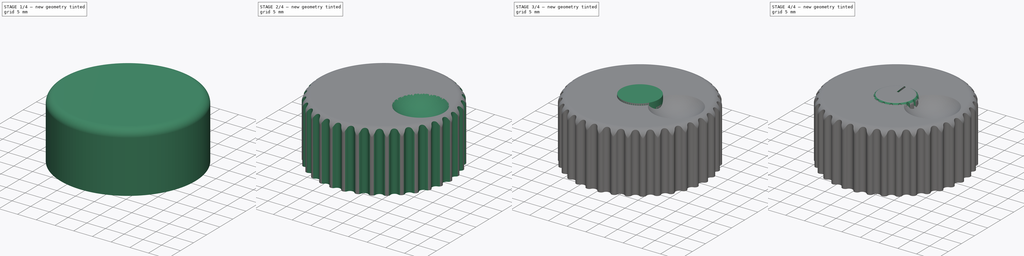
[diagram: build sequence overview — one tinted view per stage of 4, left to right]
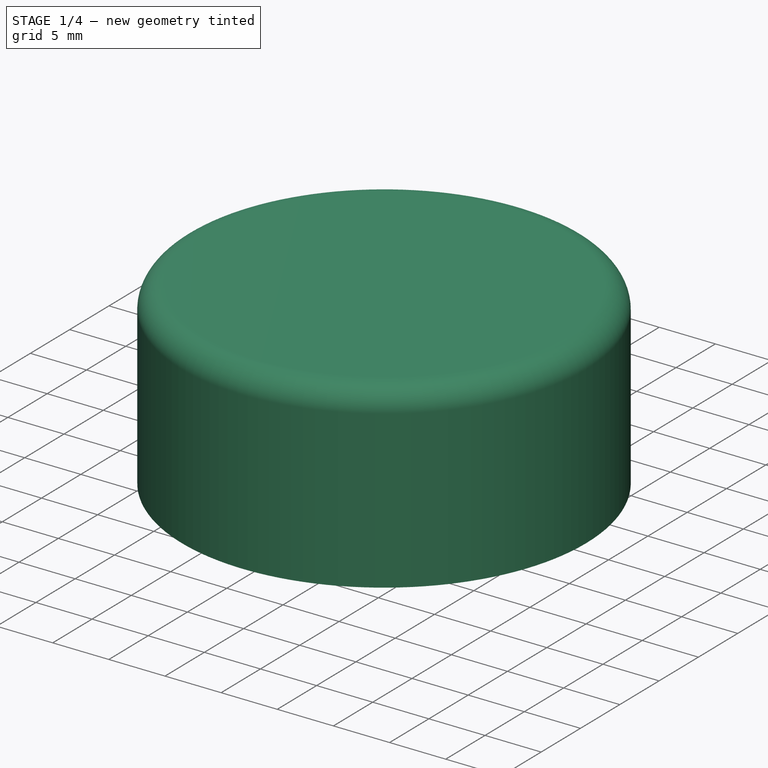
[diagram: stage 1 of 4 — iso view after this stage's code; geometry added in this stage tinted green]
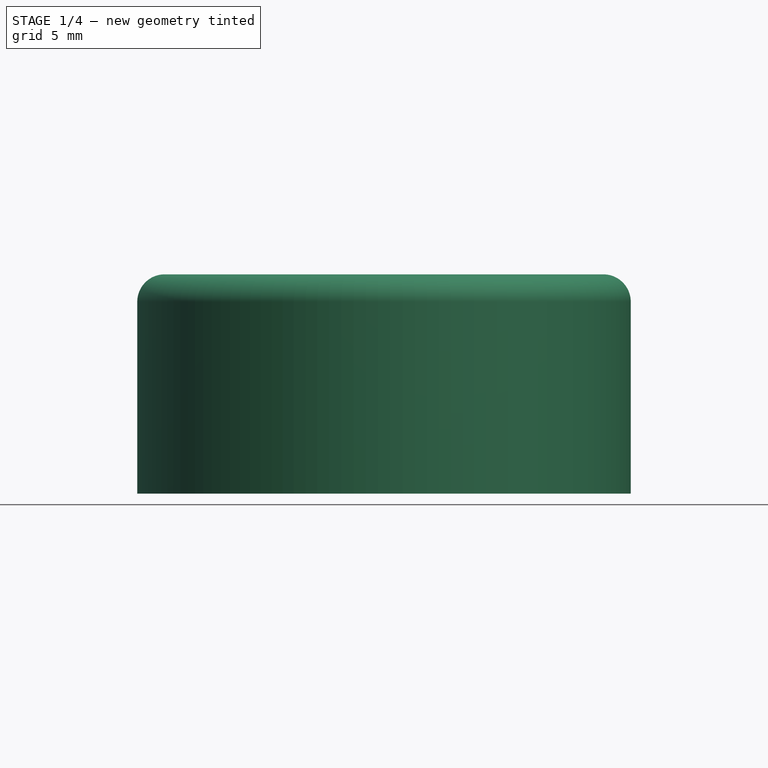
[diagram: stage 1 of 4 — front view after this stage's code; geometry added in this stage tinted green]
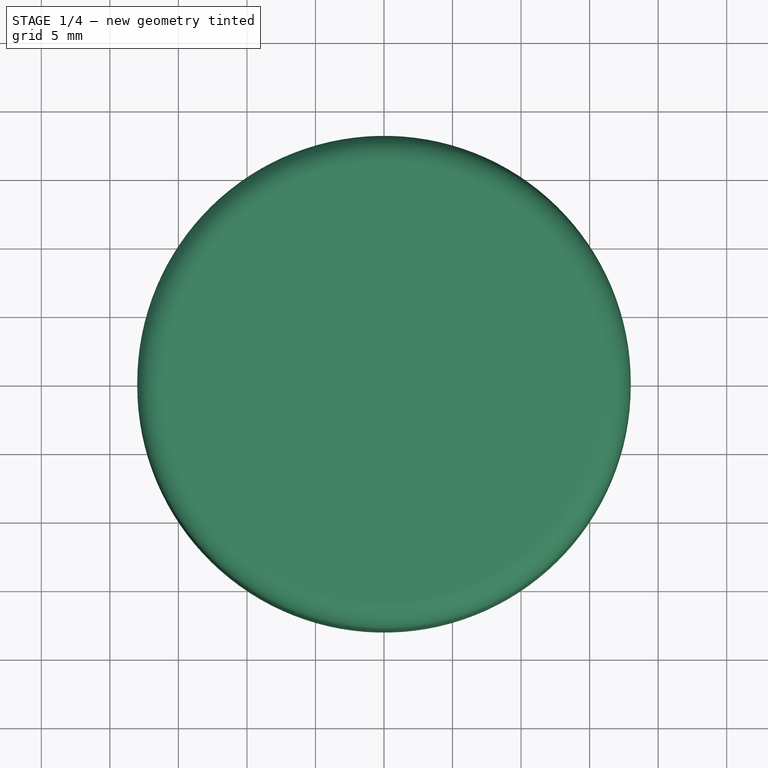
[diagram: stage 1 of 4 — top view after this stage's code; geometry added in this stage tinted green]
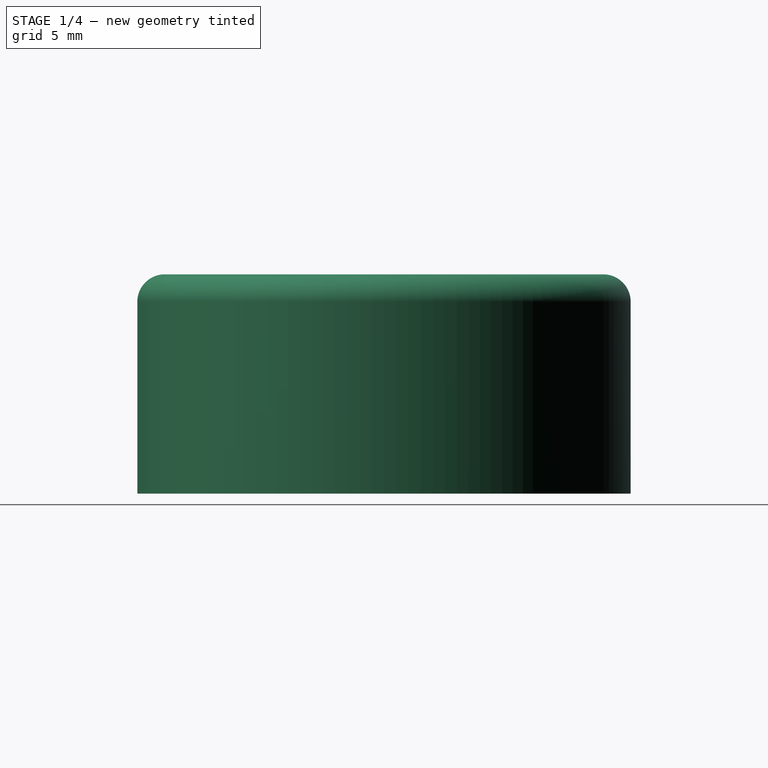
[diagram: stage 1 of 4 — right view after this stage's code; geometry added in this stage tinted green]
FCSTD DOCUMENT  (FreeCAD 0.19R24366 (Git))
Label: EncoderKnobs
License: All rights reserved
LicenseURL: http://en.wikipedia.org/wiki/All_rights_reserved
objects: Sketcher::SketchObject×27, PartDesign::SubtractiveLoft×4, PartDesign::AdditiveLoft×3, PartDesign::Fillet×2, PartDesign::PolarPattern×2, PartDesign::Body×2, Spreadsheet::Sheet×1, PartDesign::Pocket×1, PartDesign::Pad×1, PartDesign::Groove×1
note: 55 computed .brp shape members not serialized (recipe doc carries the construction recipe); baked Part::Feature solids carry a one-line shape summary decoded from their .brp

FEATURE [PartDesign::Body] Body001  label="SmallKnob"
  Group = -> [Sketch003,Sketch004,Sketch005,Sketch006,Sketch007,AdditiveLoft,Sketch008,Sketch009,Sketch010,Sketch011,SubtractiveLoft,Sketch012,Sketch013,Sketch014,AdditiveLoft001,Fillet,Sketch,Pocket,Sketch015,Sketch016,SubtractiveLoft001,PolarPattern]
  Origin = -> Origin001
  Tip = -> PolarPattern
FEATURE [Sketcher::SketchObject] Sketch017  label="LK_Template_XY"
  FullyConstrained = true
  MapMode = 5
  Support = -> [XY_Plane002]
  sketch-geometry (12):
    g0: Circle CenterX=0 CenterY=0 CenterZ=0 NormalX=0 NormalY=0 NormalZ=1 AngleXU=0 Radius=18
    g1: Circle CenterX=0 CenterY=0 CenterZ=0 NormalX=0 NormalY=0 NormalZ=1 AngleXU=0 Radius=3.1
    g2: LineSegment StartX=-0.5 StartY=3.3 StartZ=0 EndX=-0.5 EndY=-3.3 EndZ=0
    g3: LineSegment StartX=0.5 StartY=3.3 StartZ=0 EndX=0.5 EndY=-3.3 EndZ=0
    g4: Circle CenterX=0 CenterY=0 CenterZ=0 NormalX=0 NormalY=0 NormalZ=1 AngleXU=0 Radius=3.3
    g5: LineSegment StartX=0 StartY=18 StartZ=0 EndX=0 EndY=-18 EndZ=0
    g6: LineSegment StartX=-18 StartY=0 StartZ=0 EndX=18 EndY=0 EndZ=0
    g7: LineSegment StartX=-0.5 StartY=3.3 StartZ=0 EndX=0.5 EndY=3.3 EndZ=0
    g8: LineSegment StartX=-0.5 StartY=-3.3 StartZ=0 EndX=0.5 EndY=-3.3 EndZ=0
    g9: ArcOfCircle CenterX=0 CenterY=18 CenterZ=0 NormalX=0 NormalY=0 NormalZ=1 AngleXU=0 Radius=1 StartAngle=3.64746 EndAngle=5.77732
    g10: ArcOfCircle CenterX=-1.57456 CenterY=17.1278 CenterZ=0 NormalX=0 NormalY=0 NormalZ=1 AngleXU=0 Radius=0.8 StartAngle=0.505869 EndAngle=1.66247
    g11: ArcOfCircle CenterX=1.57456 CenterY=17.1278 CenterZ=0 NormalX=0 NormalY=0 NormalZ=1 AngleXU=0 Radius=0.8 StartAngle=1.47912 EndAngle=2.63572
  constraints (33):
    c: Coincident(g1,g0)
    c: Radius(g1) = 3.1  'Rinternal_t'
    c: Vertical(g2)
    c: Vertical(g3)
    c: DistanceX(g2,g3) = 1
    c: Radius(g0) = 18  'Rbase'
    c: Coincident(g4,g0)
    c: Radius(g4) = 3.3  'Rinternal_b'
    c: Symmetric(g3,g2,g0)
    c: Coincident(g0,g-1)
    c: PointOnObject(g5,g0)
    c: PointOnObject(g5,g0)
    c: Vertical(g5)
    c: PointOnObject(g6,g0)
    c: PointOnObject(g6,g0)
    c: Horizontal(g6)
    c: PointOnObject(g0,g6)
    c: Coincident(g7,g2)
    c: Coincident(g7,g3)
    c: Horizontal(g7)
    c: Coincident(g8,g2)
    c: Coincident(g8,g3)
    c: Horizontal(g8)
    c: Tangent(g8,g4)
    c: PointOnObject(g0,g5)
    c: Coincident(g9,g5)
    c: Radius(g9) = 1
    c: Tangent(g9,g10) = 1.5708
    c: Tangent(g10,g0) = -1.5708
    c: Tangent(g9,g11) = 1.5708
    c: Tangent(g11,g0) = -1.5708
    c: Equal(g11,g10)
    c: Radius(g10) = 0.8
FEATURE [Sketcher::SketchObject] Sketch018  label="LK_Base"
  ExternalGeometry = -> [Sketch017]
  FullyConstrained = true
  MapMode = 5
  Support = -> [XY_Plane002]
  sketch-geometry (1):
    g0: Circle CenterX=0 CenterY=0 CenterZ=0 NormalX=0 NormalY=0 NormalZ=1 AngleXU=0 Radius=18
  constraints (2):
    c: Coincident(g-3,g0)
    c: Equal(g0,g-3)
FEATURE [Sketcher::SketchObject] Sketch022  label="LK_HandleCavityTop"
  AttachmentOffset = pos=(0,0,14.8) rot=(0,0,1;0rad)
  ExternalGeometry = -> [Sketch017]
  FullyConstrained = true
  MapMode = 5
  Placement = pos=(0,0,14.8) rot=(0,0,1;0rad)
  Support = -> [XY_Plane002]
  expr: .AttachmentOffset.Base.z = <<LK_Base>>.AttachmentOffset.Base.z + <<LK_Base_>>.Length - 1.2mm
  sketch-geometry (1):
    g0: Circle CenterX=0 CenterY=0 CenterZ=0 NormalX=0 NormalY=0 NormalZ=1 AngleXU=0 Radius=3.1
  constraints (2):
    c: Coincident(g0,g-3)
    c: Equal(g0,g-3)
FEATURE [Sketcher::SketchObject] Sketch023  label="LK_HandleCavityBottom"
  AttachmentOffset = pos=(0,0,4) rot=(0,0,1;0rad)
  ExternalGeometry = -> [Sketch017]
  FullyConstrained = true
  MapMode = 5
  Placement = pos=(0,0,4) rot=(0,0,1;0rad)
  Support = -> [XY_Plane002]
  expr: .AttachmentOffset.Base.z = <<LK_HandleCavityTop>>.AttachmentOffset.Base.z - 10.8mm
  sketch-geometry (1):
    g0: Circle CenterX=0 CenterY=0 CenterZ=0 NormalX=0 NormalY=0 NormalZ=1 AngleXU=0 Radius=3.3
  constraints (2):
    c: Coincident(g-3,g0)
    c: Equal(g-3,g0)
FEATURE [Sketcher::SketchObject] Sketch025  label="LK_BaseCavityBottom"
  ExternalGeometry = -> [Sketch023]
  FullyConstrained = true
  MapMode = 5
  Support = -> [XY_Plane002]
  expr: .AttachmentOffset.Base.z = <<LK_Base>>.AttachmentOffset.Base.z
  sketch-geometry (2):
    g0: LineSegment StartX=7.8 StartY=0 StartZ=0 EndX=3.3 EndY=0 EndZ=0
    g1: Circle CenterX=0 CenterY=0 CenterZ=0 NormalX=0 NormalY=0 NormalZ=1 AngleXU=0 Radius=7.8
  constraints (6):
    c: Horizontal(g0)
    c: PointOnObject(g0,g1)
    c: PointOnObject(g1,g0)
    c: Coincident(g-3,g1)
    c: PointOnObject(g0,g-3)
    c: DistanceX(g0,g0) = 4.5
FEATURE [Sketcher::SketchObject] Sketch026  label="LK_HandleAlignerTop"
  AttachmentOffset = pos=(0,0,14.8) rot=(0,0,1;0rad)
  ExternalGeometry = -> [Sketch017]
  FullyConstrained = true
  MapMode = 5
  Placement = pos=(0,0,14.8) rot=(0,0,1;0rad)
  Support = -> [XY_Plane002]
  expr: .AttachmentOffset.Base.z = <<LK_HandleCavityTop>>.AttachmentOffset.Base.z
  sketch-geometry (4):
    g0: LineSegment StartX=0.5 StartY=-3.3 StartZ=0 EndX=-0.5 EndY=-3.3 EndZ=0
    g1: LineSegment StartX=-0.5 StartY=-3.3 StartZ=0 EndX=-0.5 EndY=3.3 EndZ=0
    g2: LineSegment StartX=-0.5 StartY=3.3 StartZ=0 EndX=0.5 EndY=3.3 EndZ=0
    g3: LineSegment StartX=0.5 StartY=3.3 StartZ=0 EndX=0.5 EndY=-3.3 EndZ=0
  constraints (8):
    c: Coincident(g0,g1)
    c: Coincident(g1,g2)
    c: Coincident(g2,g3)
    c: Coincident(g3,g0)
    c: Coincident(g-3,g0)
    c: Coincident(g-3,g0)
    c: Coincident(g1,g-4)
    c: Coincident(g-4,g2)
FEATURE [Sketcher::SketchObject] Sketch027  label="LK_HandleAlignerMiddle"
  AttachmentOffset = pos=(0,0,7) rot=(0,0,1;0rad)
  ExternalGeometry = -> [Sketch017]
  FullyConstrained = true
  MapMode = 5
  Placement = pos=(0,0,7) rot=(0,0,1;0rad)
  Support = -> [XY_Plane002]
  expr: .AttachmentOffset.Base.z = <<LK_HandleCavityBottom>>.AttachmentOffset.Base.z + 3mm
  sketch-geometry (4):
    g0: LineSegment StartX=0.5 StartY=-3.3 StartZ=0 EndX=-0.5 EndY=-3.3 EndZ=0
    g1: LineSegment StartX=-0.5 StartY=-3.3 StartZ=0 EndX=-0.5 EndY=3.3 EndZ=0
    g2: LineSegment StartX=-0.5 StartY=3.3 StartZ=0 EndX=0.5 EndY=3.3 EndZ=0
    g3: LineSegment StartX=0.5 StartY=3.3 StartZ=0 EndX=0.5 EndY=-3.3 EndZ=0
  constraints (8):
    c: Coincident(g0,g1)
    c: Coincident(g1,g2)
    c: Coincident(g2,g3)
    c: Coincident(g3,g0)
    c: Coincident(g-3,g0)
    c: Coincident(g-3,g0)
    c: Coincident(g-4,g2)
    c: Coincident(g-4,g1)
FEATURE [Sketcher::SketchObject] Sketch028  label="LK_HandleAlignerBottom"
  AttachmentOffset = pos=(0,0,4) rot=(0,0,1;0rad)
  ExternalGeometry = -> [Sketch017]
  FullyConstrained = true
  MapMode = 5
  Placement = pos=(0,0,4) rot=(0,0,1;0rad)
  Support = -> [XY_Plane002]
  expr: .AttachmentOffset.Base.z = <<LK_HandleCavityBottom>>.AttachmentOffset.Base.z
  sketch-geometry (6):
    g0: LineSegment StartX=-0.21 StartY=3.3 StartZ=0 EndX=0.21 EndY=3.3 EndZ=0
    g1: LineSegment StartX=0.21 StartY=3.3 StartZ=0 EndX=0.21 EndY=-3.3 EndZ=0
    g2: LineSegment StartX=0.21 StartY=-3.3 StartZ=0 EndX=-0.21 EndY=-3.3 EndZ=0
    g3: LineSegment StartX=-0.21 StartY=-3.3 StartZ=0 EndX=-0.21 EndY=3.3 EndZ=0
    g4: LineSegment StartX=-0.5 StartY=3.3 StartZ=0 EndX=-0.21 EndY=3.3 EndZ=0
    g5: LineSegment StartX=0.21 StartY=3.3 StartZ=0 EndX=0.5 EndY=3.3 EndZ=0
  constraints (16):
    c: Coincident(g0,g1)
    c: Coincident(g1,g2)
    c: Coincident(g2,g3)
    c: Coincident(g3,g0)
    c: Horizontal(g0)
    c: Horizontal(g2)
    c: Vertical(g1)
    c: Vertical(g3)
    c: DistanceX(g0,g0) = 0.42
    c: PointOnObject(g2,g-4)
    c: PointOnObject(g0,g-3)
    c: Coincident(g4,g-3)
    c: Coincident(g4,g0)
    c: Coincident(g5,g0)
    c: Coincident(g5,g-3)
    c: Equal(g5,g4)
FEATURE [Sketcher::SketchObject] Sketch029
  ExternalGeometry = -> [Sketch017]
  FullyConstrained = true
  MapMode = 5
  Support = -> [XY_Plane002]
  expr: .AttachmentOffset.Base.z = <<LK_Base>>.AttachmentOffset.Base.z
  sketch-geometry (4):
    g0: ArcOfCircle CenterX=7e-16 CenterY=18 CenterZ=0 NormalX=0 NormalY=0 NormalZ=1 AngleXU=0 Radius=1 StartAngle=3.64746 EndAngle=5.77732
    g1: ArcOfCircle CenterX=1.57456 CenterY=17.1278 CenterZ=0 NormalX=0 NormalY=0 NormalZ=1 AngleXU=0 Radius=0.8 StartAngle=1.47912 EndAngle=2.63572
    g2: ArcOfCircle CenterX=-1.57456 CenterY=17.1278 CenterZ=0 NormalX=0 NormalY=0 NormalZ=1 AngleXU=0 Radius=0.8 StartAngle=0.505869 EndAngle=1.66247
    g3: ArcOfCircle CenterX=-9.1e-15 CenterY=1.5e-14 CenterZ=0 NormalX=0 NormalY=0 NormalZ=1 AngleXU=0 Radius=18 StartAngle=1.47912 EndAngle=1.66247
  constraints (12):
    c: Coincident(g0,g-6)
    c: Coincident(g0,g-5)
    c: Coincident(g1,g0)
    c: Coincident(g1,g-5)
    c: Coincident(g2,g-6)
    c: Coincident(g2,g0)
    c: Equal(g2,g-6)
    c: Equal(g-4,g0)
    c: Equal(g1,g-5)
    c: Coincident(g3,g2)
    c: Coincident(g3,g1)
    c: Equal(g3,g-3)
FEATURE [Sketcher::SketchObject] Sketch030
  AttachmentOffset = pos=(0,0,16) rot=(0,0,1;0rad)
  ExternalGeometry = -> [Sketch017]
  FullyConstrained = true
  MapMode = 5
  Placement = pos=(0,0,16) rot=(0,0,1;0rad)
  Support = -> [XY_Plane002]
  expr: .AttachmentOffset.Base.z = <<LK_Base>>.AttachmentOffset.Base.z + <<LK_Base_>>.Length
  sketch-geometry (4):
    g0: ArcOfCircle CenterX=-2.51e-14 CenterY=18 CenterZ=0 NormalX=0 NormalY=0 NormalZ=1 AngleXU=0 Radius=1 StartAngle=3.64746 EndAngle=5.77732
    g1: ArcOfCircle CenterX=1.57456 CenterY=17.1278 CenterZ=0 NormalX=0 NormalY=0 NormalZ=1 AngleXU=0 Radius=0.8 StartAngle=1.47912 EndAngle=2.63572
    g2: ArcOfCircle CenterX=-1.57456 CenterY=17.1278 CenterZ=0 NormalX=0 NormalY=0 NormalZ=1 AngleXU=0 Radius=0.8 StartAngle=0.505869 EndAngle=1.66247
    g3: ArcOfCircle CenterX=-1.72e-14 CenterY=1.45e-14 CenterZ=0 NormalX=0 NormalY=0 NormalZ=1 AngleXU=0 Radius=18 StartAngle=1.47912 EndAngle=1.66247
  constraints (12):
    c: Coincident(g0,g-6)
    c: Coincident(g0,g-5)
    c: Coincident(g1,g0)
    c: Coincident(g1,g-4)
    c: Coincident(g2,g-6)
    c: Coincident(g2,g0)
    c: Coincident(g3,g2)
    c: Coincident(g3,g1)
    c: Equal(g3,g-3)
    c: Equal(g1,g-4)
    c: Equal(g-5,g0)
    c: Equal(g2,g-6)
FEATURE [PartDesign::Pad] Pad  label="LK_Base_"
  Direction = (1,1,1)
  Length = 16
  Length2 = 100
  Profile = -> Sketch018
  Type = 0
FEATURE [PartDesign::SubtractiveLoft] SubtractiveLoft002
  BaseFeature = -> Pad
  Closed = false
  Profile = -> Sketch022
  Ruled = true
  Sections = -> [Sketch023,Sketch025]
FEATURE [PartDesign::AdditiveLoft] AdditiveLoft003
  BaseFeature = -> SubtractiveLoft002
  Closed = false
  Profile = -> Sketch026
  Ruled = true
  Sections = -> [Sketch027,Sketch028]
FEATURE [PartDesign::Fillet] Fillet001
  Base = -> AdditiveLoft003 [Edge3]
  BaseFeature = -> AdditiveLoft003
  Radius = 2
  SupportTransform = false
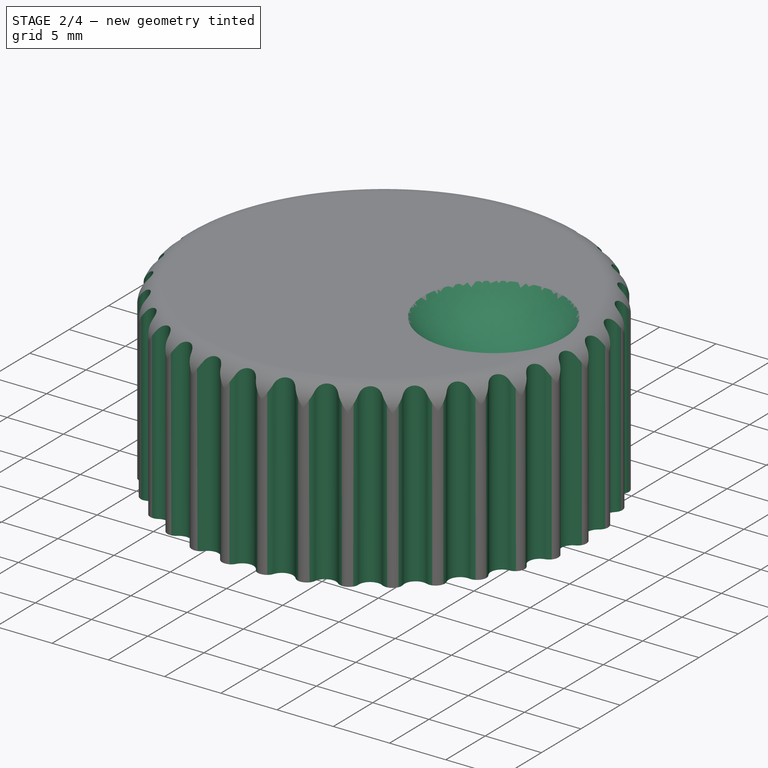
[diagram: stage 2 of 4 — iso view after this stage's code; geometry added in this stage tinted green]
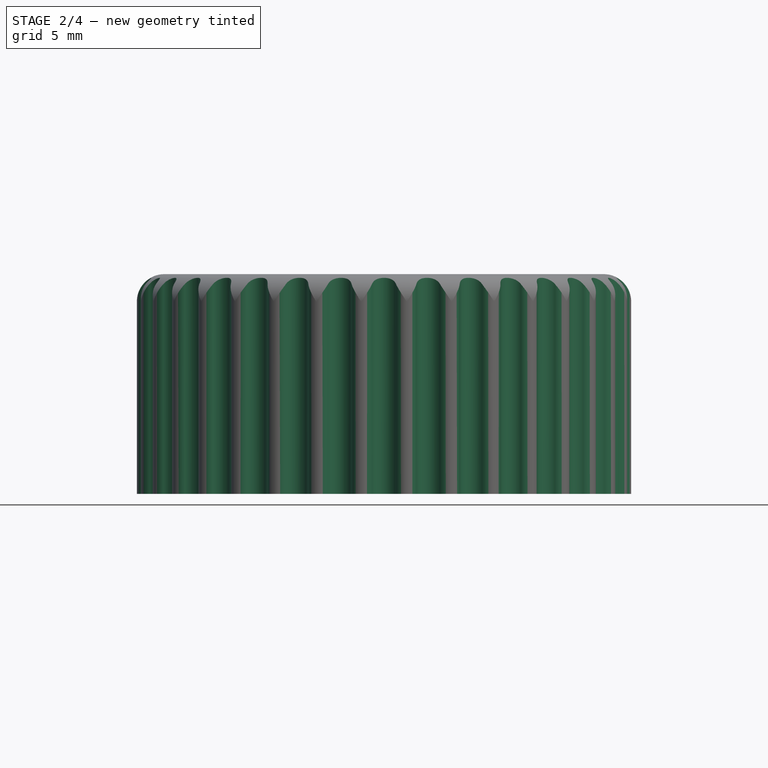
[diagram: stage 2 of 4 — front view after this stage's code; geometry added in this stage tinted green]
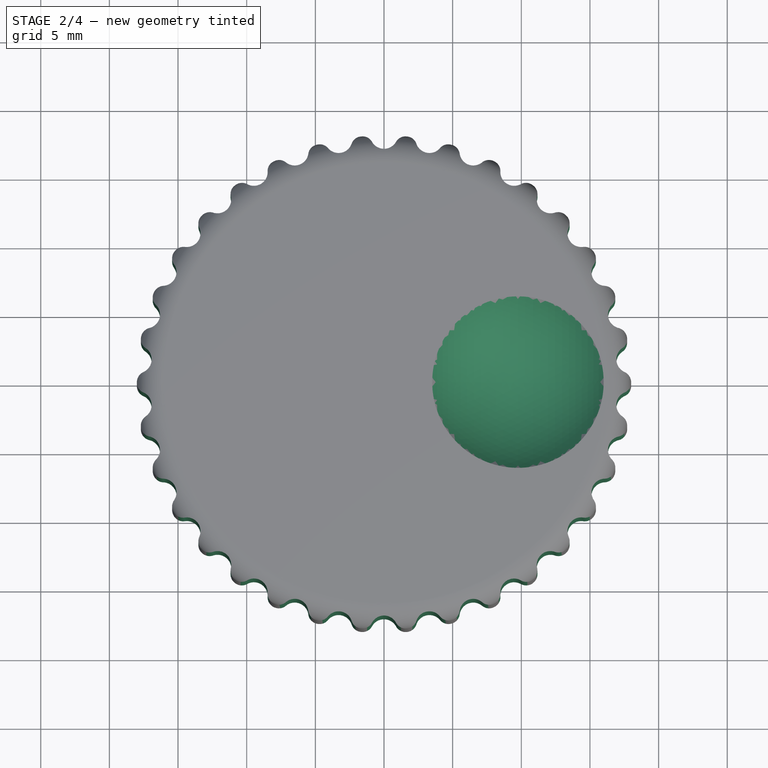
[diagram: stage 2 of 4 — top view after this stage's code; geometry added in this stage tinted green]
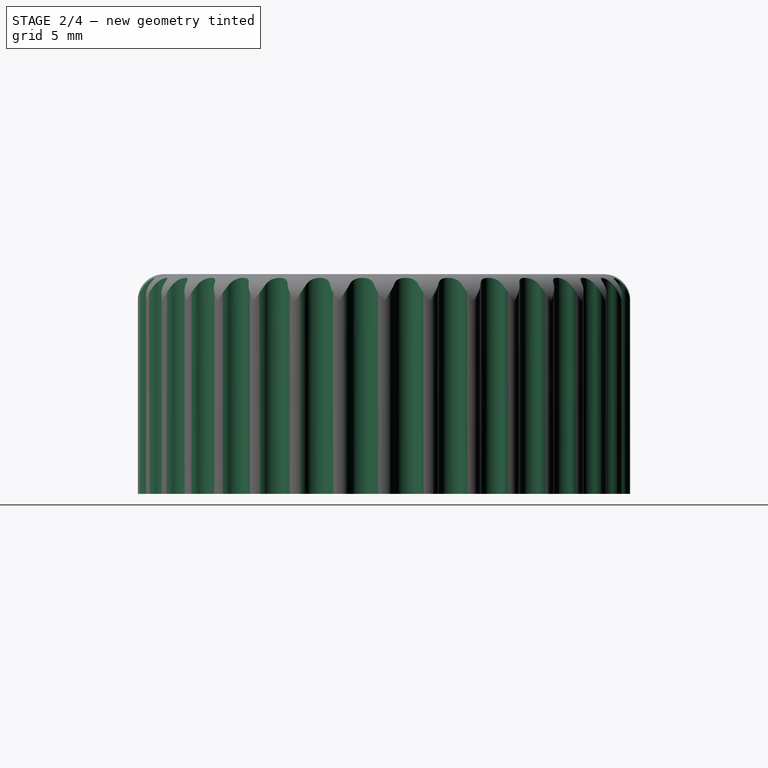
[diagram: stage 2 of 4 — right view after this stage's code; geometry added in this stage tinted green]
FEATURE [PartDesign::SubtractiveLoft] SubtractiveLoft003
  BaseFeature = -> Fillet001
  Closed = false
  Profile = -> Sketch029
  Ruled = false
  Sections = -> [Sketch030]
FEATURE [PartDesign::PolarPattern] PolarPattern001
  Angle = 360
  Axis = -> Sketch029 [N_Axis]
  BaseFeature = -> SubtractiveLoft003
  Occurrences = 34
  Originals = -> [SubtractiveLoft003]
FEATURE [Sketcher::SketchObject] Sketch031  label="LK_Template_XZ"
  FullyConstrained = true
  MapMode = 5
  Placement = pos=(0,0,0) rot=(1,0,0;1.5708rad)
  Support = -> [XZ_Plane002]
  expr: Constraints[10] = <<LK_Base_>>.Length
  expr: Constraints[5] = <<LK_Template_XY>>.Constraints.Rbase - <<Fillet001>>.Radius
  sketch-geometry (3):
    g0: ArcOfCircle CenterX=9.755 CenterY=21 CenterZ=0 NormalX=0 NormalY=0 NormalZ=1 AngleXU=0 Radius=8 StartAngle=3.14159 EndAngle=6.28319
    g1: LineSegment StartX=1.755 StartY=21 StartZ=0 EndX=17.755 EndY=21 EndZ=0
    g2: LineSegment StartX=0 StartY=16 StartZ=0 EndX=16 EndY=16 EndZ=0
  constraints (13):
    c: Coincident(g1,g0)
    c: Coincident(g1,g0)
    c: Radius(g0) = 8  'SphereRadius'
    c: Horizontal(g2)
    c: PointOnObject(g2,g0)
    c: DistanceX(g2,g2) = 16
    c: DistanceX(g2,g0) = 9.755  'SphereHOffset'
    c: Horizontal(g1)
    c: PointOnObject(g0,g1)
    c: DistanceY(g2,g0) = 5
    c: DistanceY(g-1,g2) = 16
    c: PointOnObject(g2,g-2)
    c: DistanceY(g-1,g0) = 21  'SphereVOffset'
FEATURE [Sketcher::SketchObject] Sketch032
  AttachmentOffset = pos=(9.755,21,0) rot=(0,0,1;0rad)
  FullyConstrained = true
  MapMode = 5
  Placement = pos=(9.755,-4.7e-15,21) rot=(1,0,0;1.5708rad)
  Support = -> [XZ_Plane002]
  expr: .AttachmentOffset.Base.x = <<LK_Template_XZ>>.Constraints.SphereHOffset
  expr: .AttachmentOffset.Base.y = <<LK_Template_XZ>>.Constraints.SphereVOffset
  expr: Constraints[5] = <<LK_Template_XZ>>.Constraints.SphereRadius
  sketch-geometry (2):
    g0: ArcOfCircle CenterX=0 CenterY=0 CenterZ=0 NormalX=0 NormalY=0 NormalZ=1 AngleXU=0 Radius=8 StartAngle=3.14159 EndAngle=6.28319
    g1: LineSegment StartX=-8 StartY=2.284e-13 StartZ=0 EndX=8 EndY=-2e-15 EndZ=0
  constraints (6):
    c: Coincident(g0,g-1)
    c: PointOnObject(g0,g-1)
    c: PointOnObject(g0,g-1)
    c: Coincident(g1,g0)
    c: Coincident(g1,g0)
    c: Radius(g0) = 8
FEATURE [PartDesign::Groove] Groove
  Angle = 360
  Axis = (1,0,0)
  Base = (9.755,-4.7e-15,21)
  BaseFeature = -> PolarPattern001
  Profile = -> Sketch032
  ReferenceAxis = -> Sketch032 [H_Axis]
FEATURE [PartDesign::Body] Body002  label="LargeKnob"
  Group = -> [Sketch017,Sketch031,Sketch018,Pad,Sketch022,Sketch023,Sketch025,SubtractiveLoft002,Sketch026,Sketch027,Sketch028,AdditiveLoft003,Fillet001,Sketch029,Sketch030,SubtractiveLoft003,PolarPattern001,Sketch032,Groove]
  Origin = -> Origin002
  Tip = -> Groove
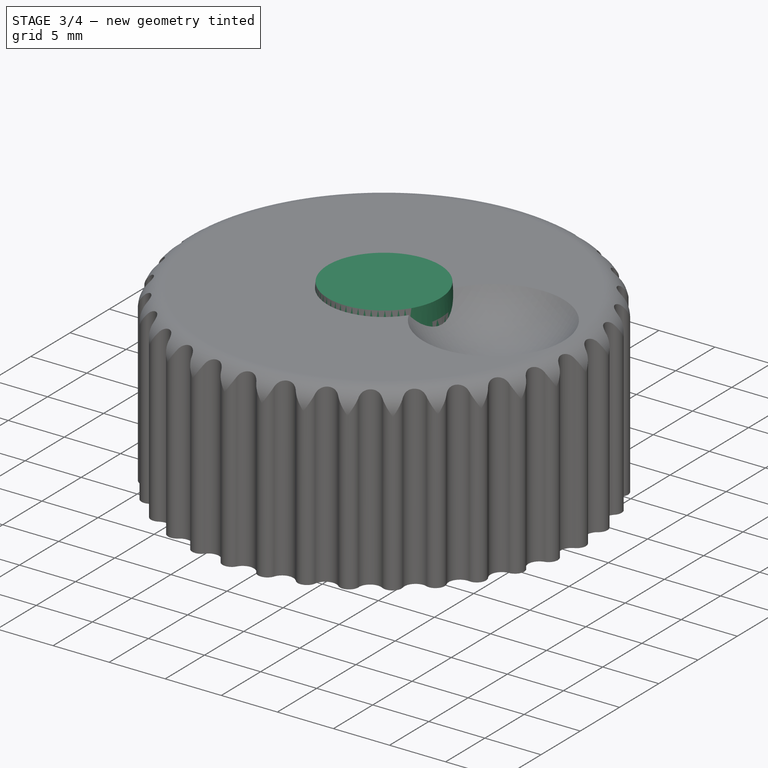
[diagram: stage 3 of 4 — iso view after this stage's code; geometry added in this stage tinted green]
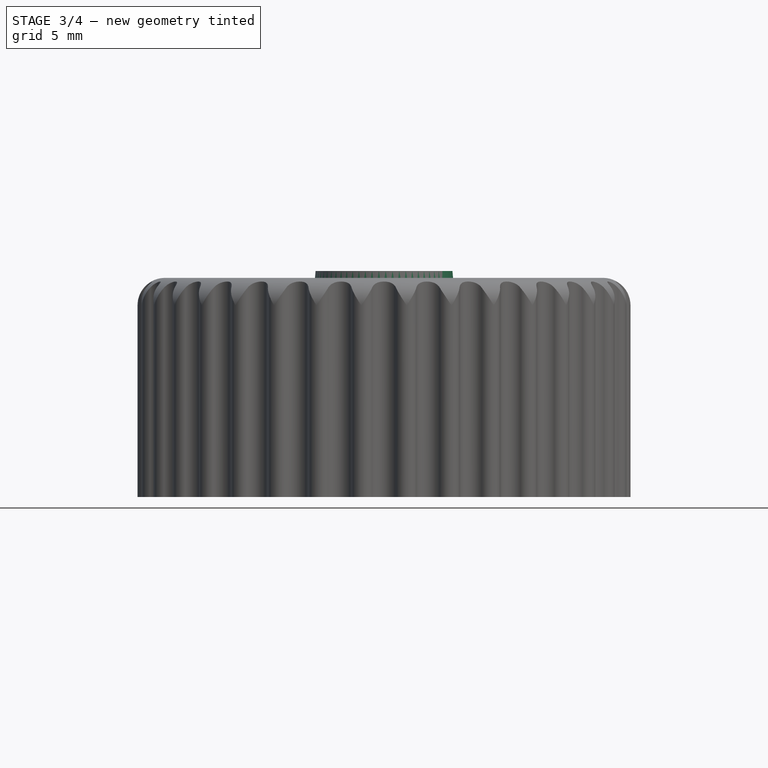
[diagram: stage 3 of 4 — front view after this stage's code; geometry added in this stage tinted green]
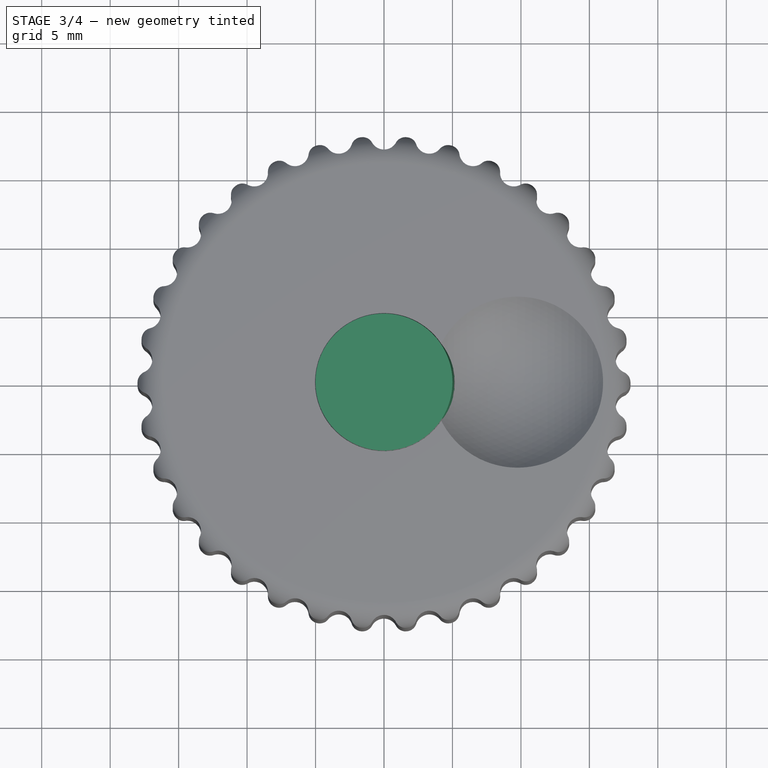
[diagram: stage 3 of 4 — top view after this stage's code; geometry added in this stage tinted green]
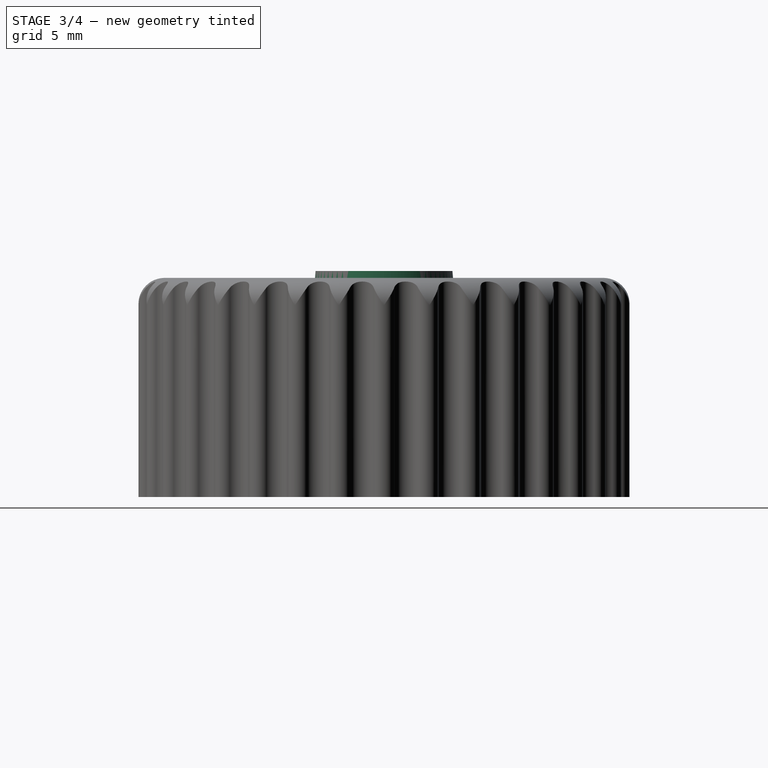
[diagram: stage 3 of 4 — right view after this stage's code; geometry added in this stage tinted green]
FEATURE [Sketcher::SketchObject] Sketch003  label="SK_Template"
  FullyConstrained = true
  MapMode = 5
  Support = -> [XY_Plane001]
  sketch-geometry (14):
    g0: Circle CenterX=0 CenterY=0 CenterZ=0 NormalX=0 NormalY=0 NormalZ=1 AngleXU=0 Radius=7.5
    g1: Circle CenterX=0 CenterY=0 CenterZ=0 NormalX=0 NormalY=0 NormalZ=1 AngleXU=0 Radius=6
    g2: Circle CenterX=0 CenterY=0 CenterZ=0 NormalX=0 NormalY=0 NormalZ=1 AngleXU=0 Radius=5
    g3: Circle CenterX=0 CenterY=0 CenterZ=0 NormalX=0 NormalY=0 NormalZ=1 AngleXU=0 Radius=3.1
    g4: LineSegment StartX=-0.5 StartY=3.3 StartZ=0 EndX=-0.5 EndY=-3.3 EndZ=0
    g5: LineSegment StartX=0.5 StartY=3.3 StartZ=0 EndX=0.5 EndY=-3.3 EndZ=0
    g6: LineSegment StartX=0 StartY=6 StartZ=0 EndX=0 EndY=-6 EndZ=0
    g7: ArcOfCircle CenterX=0 CenterY=6 CenterZ=0 NormalX=0 NormalY=0 NormalZ=1 AngleXU=0 Radius=0.5 StartAngle=3.18327 EndAngle=6.24151
    g8: ArcOfCircle CenterX=0 CenterY=5 CenterZ=0 NormalX=0 NormalY=0 NormalZ=1 AngleXU=0 Radius=0.4 StartAngle=3.1816 EndAngle=6.24317
    g9: Circle CenterX=0 CenterY=0 CenterZ=0 NormalX=0 NormalY=0 NormalZ=1 AngleXU=0 Radius=3.3
    g10: LineSegment StartX=0 StartY=7.5 StartZ=0 EndX=0 EndY=-7.5 EndZ=0
    g11: LineSegment StartX=-7.5 StartY=0 StartZ=0 EndX=7.5 EndY=0 EndZ=0
    g12: LineSegment StartX=-0.5 StartY=3.3 StartZ=0 EndX=0.5 EndY=3.3 EndZ=0
    g13: LineSegment StartX=-0.5 StartY=-3.3 StartZ=0 EndX=0.5 EndY=-3.3 EndZ=0
  constraints (42):
    c: Coincident(g1,g0)
    c: Coincident(g2,g0)
    c: Coincident(g3,g0)
    c: Radius(g3) = 3.1  'Rinternal_t'
    c: Vertical(g4)
    c: Vertical(g5)
    c: DistanceX(g4,g5) = 1
    c: Radius(g1) = 6  'Rmain_b'
    c: Radius(g0) = 7.5  'Rbase'
    c: Radius(g2) = 5  'Rmain_t'
    c: Vertical(g6)
    c: PointOnObject(g0,g6)
    c: PointOnObject(g6,g1)
    c: PointOnObject(g6,g1)
    c: Coincident(g7,g6)
    c: PointOnObject(g7,g1)
    c: PointOnObject(g7,g1)
    c: PointOnObject(g8,g2)
    c: PointOnObject(g8,g2)
    c: PointOnObject(g8,g2)
    c: PointOnObject(g8,g6)
    c: Radius(g7) = 0.5
    c: Radius(g8) = 0.4
    c: Coincident(g9,g0)
    c: Radius(g9) = 3.3  'Rinternal_b'
    c: Symmetric(g5,g4,g0)
    c: Coincident(g0,g-1)
    c: PointOnObject(g10,g0)
    c: PointOnObject(g10,g0)
    c: Vertical(g10)
    c: PointOnObject(g0,g10)
    c: PointOnObject(g11,g0)
    c: PointOnObject(g11,g0)
    c: Horizontal(g11)
    c: PointOnObject(g0,g11)
    c: Coincident(g12,g4)
    c: Coincident(g12,g5)
    c: Horizontal(g12)
    c: Coincident(g13,g4)
    c: Coincident(g13,g5)
    c: Horizontal(g13)
    c: Tangent(g13,g9)
FEATURE [Spreadsheet::Sheet] Spreadsheet
FEATURE [Sketcher::SketchObject] Sketch004  label="SK_BaseBottom"
  ExternalGeometry = -> [Sketch003]
  FullyConstrained = true
  MapMode = 5
  Support = -> [XY_Plane001]
  sketch-geometry (1):
    g0: Circle CenterX=0 CenterY=0 CenterZ=0 NormalX=0 NormalY=0 NormalZ=1 AngleXU=0 Radius=7.5
  constraints (2):
    c: Coincident(g-3,g0)
    c: Equal(g0,g-3)
FEATURE [Sketcher::SketchObject] Sketch005  label="SK_BaseTop"
  AttachmentOffset = pos=(0,0,3) rot=(0,0,1;0rad)
  ExternalGeometry = -> [Sketch003]
  FullyConstrained = true
  MapMode = 5
  Placement = pos=(0,0,3) rot=(0,0,1;0rad)
  Support = -> [XY_Plane001]
  expr: .AttachmentOffset.Base.z = <<SK_BaseBottom>>.AttachmentOffset.Base.z + 3mm
  sketch-geometry (1):
    g0: Circle CenterX=0 CenterY=0 CenterZ=0 NormalX=0 NormalY=0 NormalZ=1 AngleXU=0 Radius=7.5
  constraints (2):
    c: Coincident(g0,g-3)
    c: Equal(g0,g-3)
FEATURE [Sketcher::SketchObject] Sketch006  label="SK_MainBottom"
  AttachmentOffset = pos=(0,0,4.5) rot=(0,0,1;0rad)
  ExternalGeometry = -> [Sketch003]
  FullyConstrained = true
  MapMode = 5
  Placement = pos=(0,0,4.5) rot=(0,0,1;0rad)
  Support = -> [XY_Plane001]
  expr: .AttachmentOffset.Base.z = <<SK_BaseTop>>.AttachmentOffset.Base.z + Sketch003.Constraints.Rbase - Sketch003.Constraints.Rmain_b
  sketch-geometry (1):
    g0: Circle CenterX=0 CenterY=0 CenterZ=0 NormalX=0 NormalY=0 NormalZ=1 AngleXU=0 Radius=6
  constraints (2):
    c: Coincident(g0,g-3)
    c: Equal(g0,g-3)
FEATURE [Sketcher::SketchObject] Sketch007  label="SK_MainTop"
  AttachmentOffset = pos=(0,0,16.5) rot=(0,0,1;0rad)
  ExternalGeometry = -> [Sketch003]
  FullyConstrained = true
  MapMode = 5
  Placement = pos=(0,0,16.5) rot=(0,0,1;0rad)
  Support = -> [XY_Plane001]
  expr: .AttachmentOffset.Base.z = <<SK_MainBottom>>.AttachmentOffset.Base.z + 12mm
  sketch-geometry (1):
    g0: Circle CenterX=0 CenterY=0 CenterZ=0 NormalX=0 NormalY=0 NormalZ=1 AngleXU=0 Radius=5
  constraints (2):
    c: Coincident(g-3,g0)
    c: Equal(g-3,g0)
FEATURE [PartDesign::AdditiveLoft] AdditiveLoft
  Closed = false
  Profile = -> Sketch004
  Ruled = true
  Sections = -> [Sketch005,Sketch006,Sketch007]
FEATURE [Sketcher::SketchObject] Sketch008  label="SK_HandleCavityTop"
  AttachmentOffset = pos=(0,0,15.3) rot=(0,0,1;0rad)
  ExternalGeometry = -> [Sketch003]
  FullyConstrained = true
  MapMode = 5
  Placement = pos=(0,0,15.3) rot=(0,0,1;0rad)
  Support = -> [XY_Plane001]
  expr: .AttachmentOffset.Base.z = <<SK_MainTop>>.AttachmentOffset.Base.z - 1.2mm
  sketch-geometry (1):
    g0: Circle CenterX=0 CenterY=0 CenterZ=0 NormalX=0 NormalY=0 NormalZ=1 AngleXU=0 Radius=3.1
  constraints (2):
    c: Coincident(g-3,g0)
    c: Equal(g0,g-3)
FEATURE [Sketcher::SketchObject] Sketch009  label="SK_HandleCavityBottom"
  AttachmentOffset = pos=(0,0,4.5) rot=(0,0,1;0rad)
  ExternalGeometry = -> [Sketch003]
  FullyConstrained = true
  MapMode = 5
  Placement = pos=(0,0,4.5) rot=(0,0,1;0rad)
  Support = -> [XY_Plane001]
  expr: .AttachmentOffset.Base.z = <<SK_MainBottom>>.AttachmentOffset.Base.z
  sketch-geometry (1):
    g0: Circle CenterX=0 CenterY=0 CenterZ=0 NormalX=0 NormalY=0 NormalZ=1 AngleXU=0 Radius=3.3
  constraints (2):
    c: Coincident(g-3,g0)
    c: Equal(g0,g-3)
FEATURE [Sketcher::SketchObject] Sketch010  label="SK_BaseCavityTop"
  AttachmentOffset = pos=(0,0,3) rot=(0,0,1;0rad)
  FullyConstrained = true
  MapMode = 5
  Placement = pos=(0,0,3) rot=(0,0,1;0rad)
  Support = -> [XY_Plane001]
  expr: .AttachmentOffset.Base.z = <<SK_BaseTop>>.AttachmentOffset.Base.z
FEATURE [Sketcher::SketchObject] Sketch011  label="SK_BaseCavityBottom"
  ExternalGeometry = -> [Sketch003]
  FullyConstrained = true
  MapMode = 5
  Support = -> [XY_Plane001]
  expr: .AttachmentOffset.Base.z = <<SK_BaseBottom>>.AttachmentOffset.Base.z
  sketch-geometry (2):
    g0: LineSegment StartX=5.5 StartY=0 StartZ=0 EndX=7.5 EndY=0 EndZ=0
    g1: Circle CenterX=0 CenterY=0 CenterZ=0 NormalX=0 NormalY=0 NormalZ=1 AngleXU=0 Radius=5.5
  constraints (6):
    c: Horizontal(g0)
    c: DistanceX(g0,g0) = 2
    c: PointOnObject(g0,g-3)
    c: PointOnObject(g-3,g0)
    c: PointOnObject(g0,g1)
    c: Coincident(g-3,g1)
FEATURE [PartDesign::SubtractiveLoft] SubtractiveLoft
  BaseFeature = -> AdditiveLoft
  Closed = false
  Profile = -> Sketch008
  Ruled = true
  Sections = -> [Sketch009,Sketch011]
FEATURE [Sketcher::SketchObject] Sketch012  label="SK_HandleAlignerTop"
  AttachmentOffset = pos=(0,0,15.3) rot=(0,0,1;0rad)
  ExternalGeometry = -> [Sketch003]
  FullyConstrained = true
  MapMode = 5
  Placement = pos=(0,0,15.3) rot=(0,0,1;0rad)
  Support = -> [XY_Plane001]
  expr: .AttachmentOffset.Base.z = <<SK_HandleCavityTop>>.AttachmentOffset.Base.z
  sketch-geometry (4):
    g0: LineSegment StartX=0.5 StartY=3.3 StartZ=0 EndX=-0.5 EndY=3.3 EndZ=0
    g1: LineSegment StartX=-0.5 StartY=3.3 StartZ=0 EndX=-0.5 EndY=-3.3 EndZ=0
    g2: LineSegment StartX=-0.5 StartY=-3.3 StartZ=0 EndX=0.5 EndY=-3.3 EndZ=0
    g3: LineSegment StartX=0.5 StartY=-3.3 StartZ=0 EndX=0.5 EndY=3.3 EndZ=0
  constraints (8):
    c: Coincident(g0,g1)
    c: Coincident(g1,g2)
    c: Coincident(g2,g3)
    c: Coincident(g3,g0)
    c: Coincident(g1,g-4)
    c: Coincident(g-4,g2)
    c: Coincident(g-3,g0)
    c: Coincident(g-3,g0)
FEATURE [Sketcher::SketchObject] Sketch013  label="SK_HandleAlignerMiddle"
  AttachmentOffset = pos=(0,0,7.5) rot=(0,0,1;0rad)
  ExternalGeometry = -> [Sketch003]
  FullyConstrained = true
  MapMode = 5
  Placement = pos=(0,0,7.5) rot=(0,0,1;0rad)
  Support = -> [XY_Plane001]
  expr: .AttachmentOffset.Base.z = <<SK_HandleCavityBottom>>.AttachmentOffset.Base.z + 3mm
  sketch-geometry (4):
    g0: LineSegment StartX=0.5 StartY=3.3 StartZ=0 EndX=-0.5 EndY=3.3 EndZ=0
    g1: LineSegment StartX=-0.5 StartY=3.3 StartZ=0 EndX=-0.5 EndY=-3.3 EndZ=0
    g2: LineSegment StartX=-0.5 StartY=-3.3 StartZ=0 EndX=0.5 EndY=-3.3 EndZ=0
    g3: LineSegment StartX=0.5 StartY=-3.3 StartZ=0 EndX=0.5 EndY=3.3 EndZ=0
  constraints (8):
    c: Coincident(g0,g1)
    c: Coincident(g1,g2)
    c: Coincident(g2,g3)
    c: Coincident(g3,g0)
    c: Coincident(g1,g-4)
    c: Coincident(g-4,g2)
    c: Coincident(g-3,g0)
    c: Coincident(g-3,g0)
FEATURE [Sketcher::SketchObject] Sketch014  label="SK_HandleAlignerBottom"
  AttachmentOffset = pos=(0,0,4.5) rot=(0,0,1;0rad)
  ExternalGeometry = -> [Sketch003]
  FullyConstrained = true
  MapMode = 5
  Placement = pos=(0,0,4.5) rot=(0,0,1;0rad)
  Support = -> [XY_Plane001]
  expr: .AttachmentOffset.Base.z = <<SK_HandleCavityBottom>>.AttachmentOffset.Base.z
  sketch-geometry (4):
    g0: LineSegment StartX=-0.21 StartY=3.3 StartZ=0 EndX=0.21 EndY=3.3 EndZ=0
    g1: LineSegment StartX=0.21 StartY=3.3 StartZ=0 EndX=0.21 EndY=-3.3 EndZ=0
    g2: LineSegment StartX=0.21 StartY=-3.3 StartZ=0 EndX=-0.21 EndY=-3.3 EndZ=0
    g3: LineSegment StartX=-0.21 StartY=-3.3 StartZ=0 EndX=-0.21 EndY=3.3 EndZ=0
  constraints (11):
    c: Coincident(g0,g1)
    c: Coincident(g1,g2)
    c: Coincident(g2,g3)
    c: Coincident(g3,g0)
    c: Horizontal(g0)
    c: Horizontal(g2)
    c: Vertical(g1)
    c: Vertical(g3)
    c: DistanceX(g0,g0) = 0.42
    c: PointOnObject(g0,g-3)
    c: Symmetric(g0,g2,g-5)
FEATURE [PartDesign::AdditiveLoft] AdditiveLoft001
  BaseFeature = -> SubtractiveLoft
  Closed = false
  Profile = -> Sketch012
  Ruled = true
  Sections = -> [Sketch013,Sketch014]
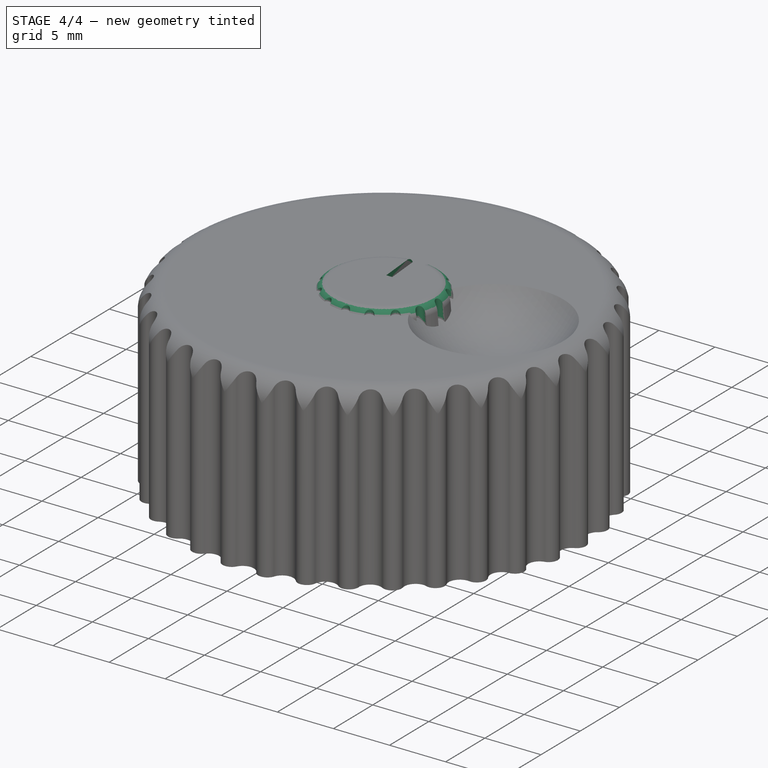
[diagram: stage 4 of 4 — iso view after this stage's code; geometry added in this stage tinted green]
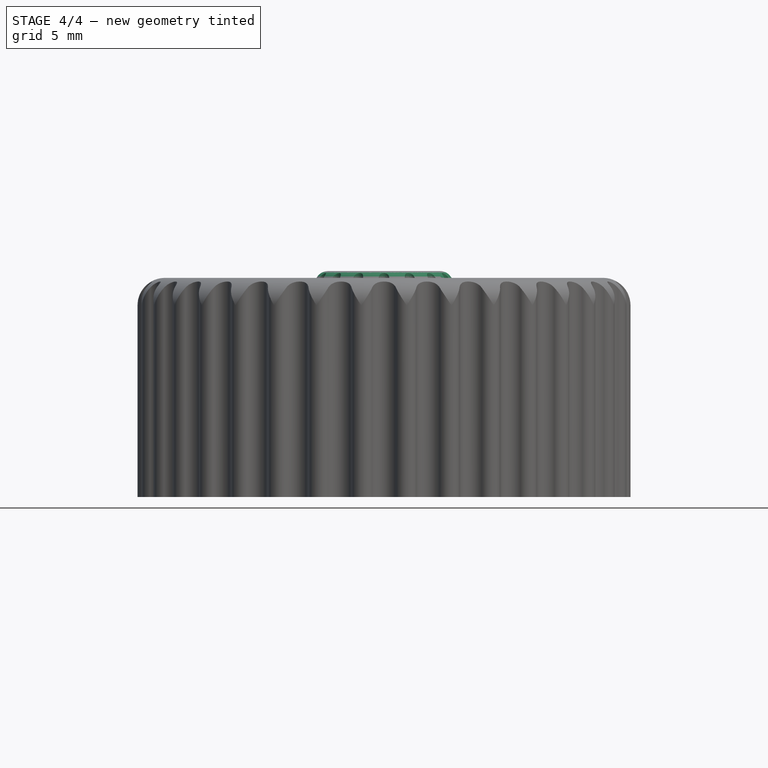
[diagram: stage 4 of 4 — front view after this stage's code; geometry added in this stage tinted green]
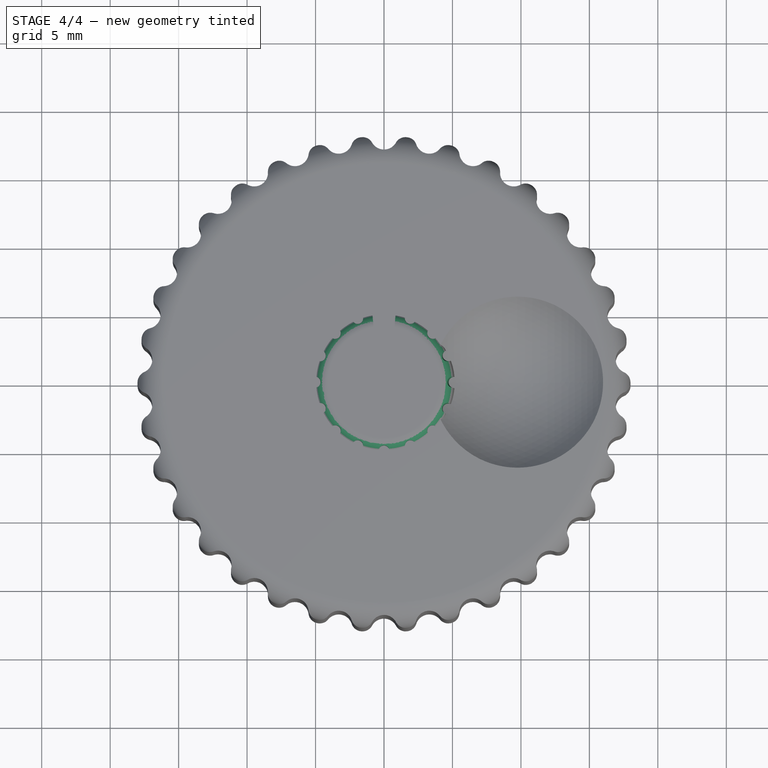
[diagram: stage 4 of 4 — top view after this stage's code; geometry added in this stage tinted green]
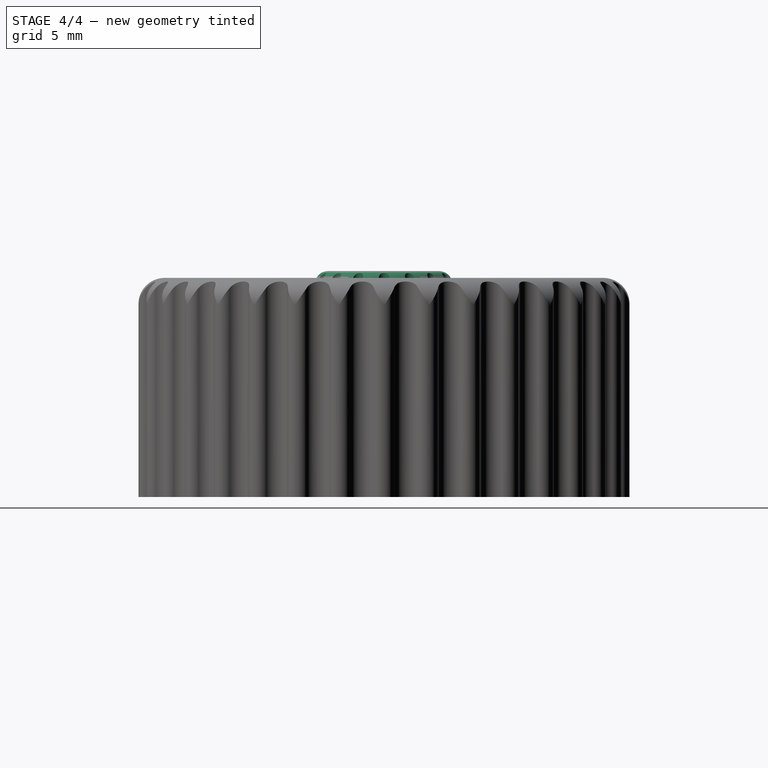
[diagram: stage 4 of 4 — right view after this stage's code; geometry added in this stage tinted green]
FEATURE [PartDesign::Fillet] Fillet
  Base = -> AdditiveLoft001 [Edge30]
  BaseFeature = -> AdditiveLoft001
  Radius = 1
  SupportTransform = false
FEATURE [Sketcher::SketchObject] Sketch015
  AttachmentOffset = pos=(0,0,4.5) rot=(0,0,1;0rad)
  ExternalGeometry = -> [Sketch003]
  FullyConstrained = true
  MapMode = 5
  Placement = pos=(0,0,4.5) rot=(0,0,1;0rad)
  Support = -> [XY_Plane001]
  expr: .AttachmentOffset.Base.z = <<SK_MainBottom>>.AttachmentOffset.Base.z
  sketch-geometry (4):
    g0: ArcOfCircle CenterX=0 CenterY=6 CenterZ=0 NormalX=0 NormalY=0 NormalZ=1 AngleXU=0 Radius=0.5 StartAngle=3.14159 EndAngle=6.28319
    g1: LineSegment StartX=-0.5 StartY=6 StartZ=0 EndX=-0.5 EndY=6.5 EndZ=0
    g2: LineSegment StartX=-0.5 StartY=6.5 StartZ=0 EndX=0.5 EndY=6.5 EndZ=0
    g3: LineSegment StartX=0.5 StartY=6.5 StartZ=0 EndX=0.5 EndY=6 EndZ=0
  constraints (10):
    c: Vertical(g1)
    c: Coincident(g1,g2)
    c: Horizontal(g2)
    c: Coincident(g2,g3)
    c: Vertical(g3)
    c: Tangent(g3,g0) = 1.5708
    c: Tangent(g1,g0) = 1.5708
    c: DistanceY(g3,g3) = 0.5
    c: PointOnObject(g0,g-3)
    c: Coincident(g0,g-3)
FEATURE [Sketcher::SketchObject] Sketch016
  AttachmentOffset = pos=(0,0,16.5) rot=(0,0,1;0rad)
  ExternalGeometry = -> [Sketch003]
  FullyConstrained = true
  MapMode = 5
  Placement = pos=(0,0,16.5) rot=(0,0,1;0rad)
  Support = -> [XY_Plane001]
  expr: .AttachmentOffset.Base.z = <<SK_MainTop>>.AttachmentOffset.Base.z
  sketch-geometry (4):
    g0: ArcOfCircle CenterX=0 CenterY=5 CenterZ=0 NormalX=0 NormalY=0 NormalZ=1 AngleXU=0 Radius=0.4 StartAngle=3.14159 EndAngle=6.28319
    g1: LineSegment StartX=-0.4 StartY=5 StartZ=0 EndX=-0.4 EndY=5.5 EndZ=0
    g2: LineSegment StartX=-0.4 StartY=5.5 StartZ=0 EndX=0.4 EndY=5.5 EndZ=0
    g3: LineSegment StartX=0.4 StartY=5.5 StartZ=0 EndX=0.4 EndY=5 EndZ=0
  constraints (10):
    c: Vertical(g1)
    c: Coincident(g1,g2)
    c: Horizontal(g2)
    c: Coincident(g2,g3)
    c: Vertical(g3)
    c: Tangent(g3,g0) = 1.5708
    c: Tangent(g1,g0) = 1.5708
    c: DistanceY(g1,g1) = 0.5
    c: PointOnObject(g0,g-3)
    c: Coincident(g0,g-3)
FEATURE [Sketcher::SketchObject] Sketch
  AttachmentOffset = pos=(0,0,16.5) rot=(0,0,1;0rad)
  ExternalGeometry = -> [Sketch003]
  FullyConstrained = true
  MapMode = 5
  Placement = pos=(0,0,16.5) rot=(0,0,1;0rad)
  Support = -> [XY_Plane001]
  expr: .AttachmentOffset.Base.z = <<SK_MainTop>>.AttachmentOffset.Base.z
  sketch-geometry (6):
    g0: ArcOfCircle CenterX=0 CenterY=0 CenterZ=0 NormalX=0 NormalY=0 NormalZ=1 AngleXU=0 Radius=6 StartAngle=1.41499 EndAngle=1.72661
    g1: LineSegment StartX=-0.931084 StartY=5.92732 StartZ=0 EndX=-0.5 EndY=1 EndZ=0
    g2: LineSegment StartX=-0.5 StartY=1 StartZ=0 EndX=0.5 EndY=1 EndZ=0
    g3: LineSegment StartX=0.5 StartY=1 StartZ=0 EndX=0.931084 EndY=5.92732 EndZ=0
    g4: LineSegment StartX=-0.931084 StartY=5.92732 StartZ=0 EndX=0.931084 EndY=5.92732 EndZ=0
    g5: LineSegment StartX=-0.931084 StartY=5.92732 StartZ=0 EndX=-0.775904 EndY=4.93943 EndZ=0
  constraints (17):
    c: Coincident(g0,g-3)
    c: Coincident(g1,g0)
    c: Coincident(g2,g1)
    c: Horizontal(g2)
    c: Coincident(g3,g2)
    c: Coincident(g3,g0)
    c: Equal(g3,g1)
    c: DistanceX(g2,g2) = 1
    c: DistanceY(g-5,g1) = 1
    c: Coincident(g4,g0)
    c: Coincident(g4,g0)
    c: Horizontal(g4)
    c: Coincident(g5,g0)
    c: PointOnObject(g5,g-3)
    c: PointOnObject(g-3,g5)
    c: Distance(g5) = 1
    c: Angle(g3,g1) = 0.174533
FEATURE [PartDesign::Pocket] Pocket
  BaseFeature = -> Fillet
  Length = 0.6
  Length2 = 100
  Profile = -> Sketch
  Type = 0
FEATURE [PartDesign::SubtractiveLoft] SubtractiveLoft001
  BaseFeature = -> Pocket
  Closed = false
  Profile = -> Sketch015
  Ruled = false
  Sections = -> [Sketch016]
FEATURE [PartDesign::PolarPattern] PolarPattern
  Angle = 360
  Axis = -> Sketch015 [N_Axis]
  BaseFeature = -> SubtractiveLoft001
  Occurrences = 16
  Originals = -> [SubtractiveLoft001]
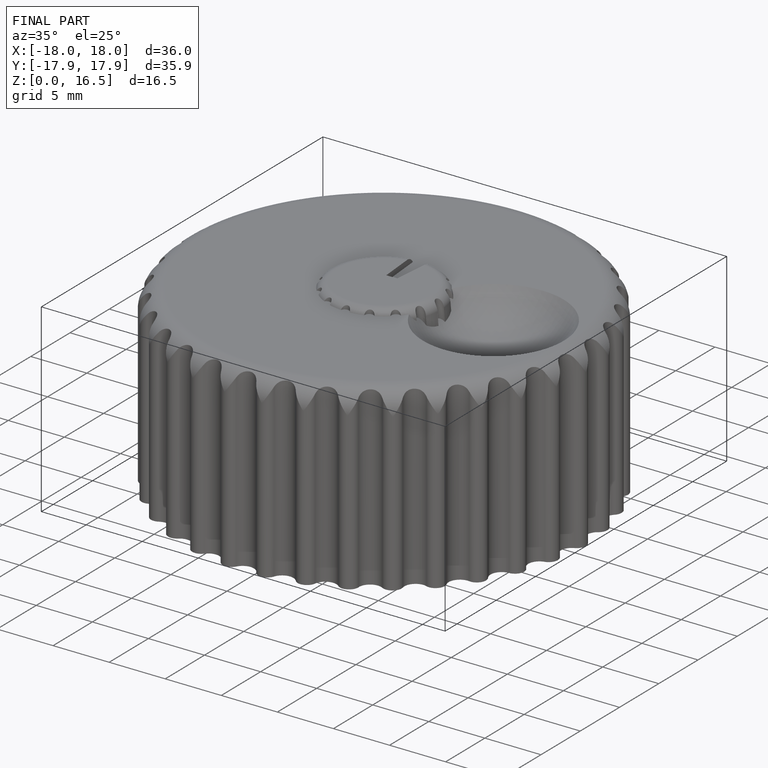
[diagram: finished part — iso view with bounding-box wireframe]
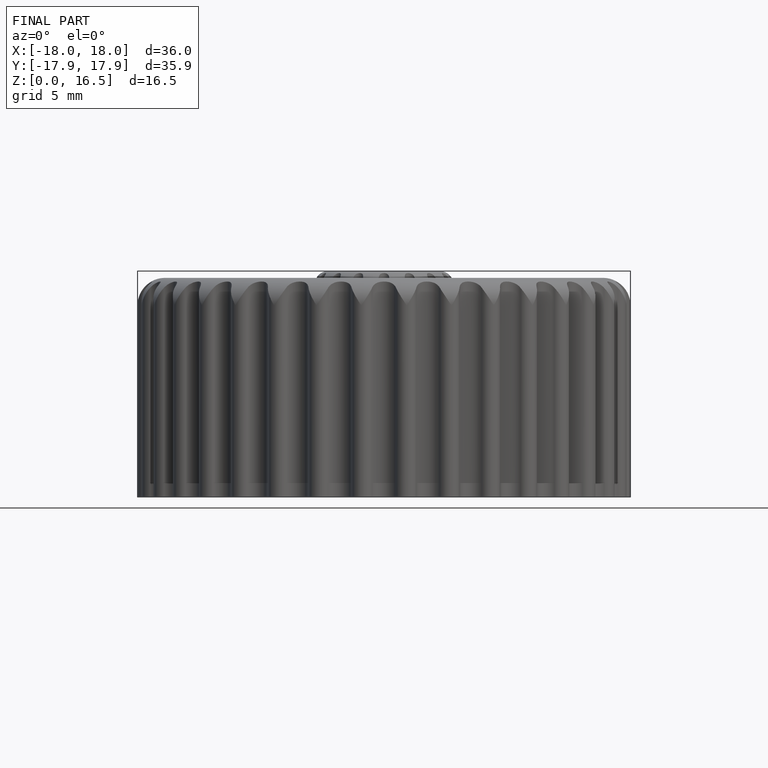
[diagram: finished part — front view with bounding-box wireframe]
